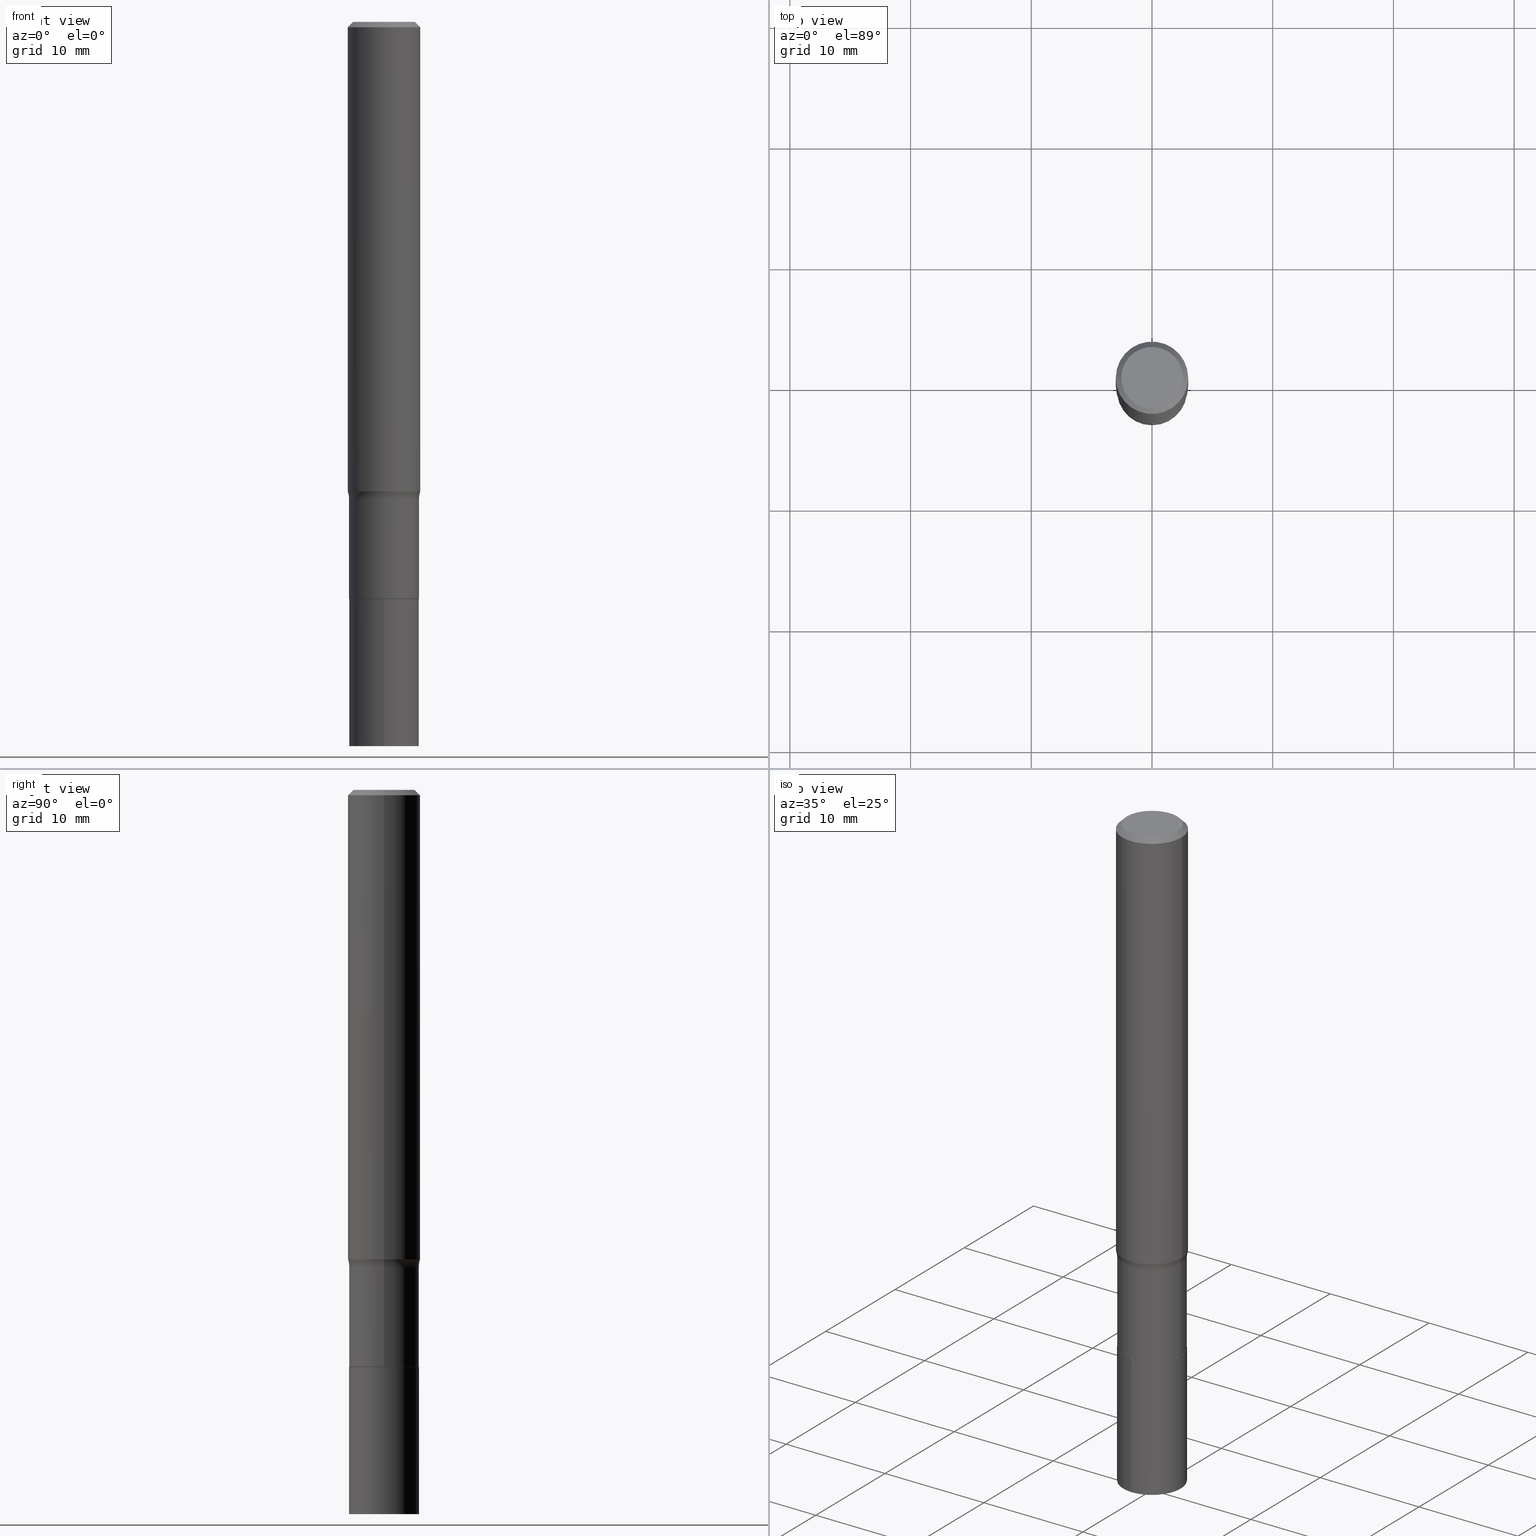
[diagram: canonical four-view strip — front | top / right | iso, engineering-drawing reading convention]
A machine part, canonical four-view strip (front | top / right | iso — engineering-drawing reading convention). The complete STEP part file that produces these views, byte-faithful:
ISO-10303-21;
HEADER;
FILE_DESCRIPTION (( 'STEP AP203' ),
    '1' );
FILE_NAME ('67103.STEP',
    '2024-04-19T15:53:03',
    ( '' ),
    ( '' ),
    'SwSTEP 2.0',
    'SolidWorks 2023',
    '' );
FILE_SCHEMA (( 'CONFIG_CONTROL_DESIGN' ));
ENDSEC;

DATA;
#1 = CARTESIAN_POINT ( 'NONE',  ( 3.744434943004037419E-29, -5.346060720523065079E-15, -1.531172646133749593 ) ) ;
#2 = DIRECTION ( 'NONE',  ( 2.438088387897960049E-29, -3.491481338843145188E-15, -1.000000000000000000 ) ) ;
#3 = CARTESIAN_POINT ( 'NONE',  ( 4.008699684532606202E-46, -5.723360734012321624E-32, -1.639235664913700718E-17 ) ) ;
#4 = CARTESIAN_POINT ( 'NONE',  ( 0.1181000000000001077, -8.246878922347488542E-16, 5.758764772215005345E-30 ) ) ;
#5 =( CONVERSION_BASED_UNIT ( 'INCH', #443 ) LENGTH_UNIT ( ) NAMED_UNIT ( #320 ) );
#6 = CARTESIAN_POINT ( 'NONE',  ( 0.000000000000000000, 0.000000000000000000, 0.000000000000000000 ) ) ;
#7 = VERTEX_POINT ( 'NONE', #51 ) ;
#8 = CARTESIAN_POINT ( 'NONE',  ( 8.110845328702120580E-16, 0.1141499999999934234, -1.882200000000000539 ) ) ;
#9 = VERTEX_POINT ( 'NONE', #187 ) ;
#10 = AXIS2_PLACEMENT_3D ( 'NONE', #155, #26, #305 ) ;
#11 = ORIENTED_EDGE ( 'NONE', *, *, #464, .T. ) ;
#12 = COORDINATED_UNIVERSAL_TIME_OFFSET ( 5, 0, .BEHIND. ) ;
#13 = EDGE_LOOP ( 'NONE', ( #153, #374, #444, #231 ) ) ;
#14 = ORIENTED_EDGE ( 'NONE', *, *, #382, .F. ) ;
#15 = DIRECTION ( 'NONE',  ( 1.000000000000000000, -6.982962677686269077E-15, 0.000000000000000000 ) ) ;
#16 = EDGE_LOOP ( 'NONE', ( #370, #253 ) ) ;
#17 = AXIS2_PLACEMENT_3D ( 'NONE', #392, #108, #65 ) ;
#18 = PRODUCT_DEFINITION_FORMATION_WITH_SPECIFIED_SOURCE ( 'ANY', '', #178, .NOT_KNOWN. ) ;
#19 = ADVANCED_FACE ( 'NONE', ( #339 ), #286, .T. ) ;
#20 = ADVANCED_FACE ( 'NONE', ( #290 ), #299, .T. ) ;
#21 = DIRECTION ( 'NONE',  ( -1.000000000000000000, 7.105427357601005014E-15, 0.000000000000000000 ) ) ;
#22 = PRODUCT_DEFINITION_SHAPE ( 'NONE', 'NONE',  #368 ) ;
#23 = CARTESIAN_POINT ( 'NONE',  ( -0.1141499999999999737, 8.110845328701541754E-16, -5.614964405525973971E-30 ) ) ;
#24 = ORIENTED_EDGE ( 'NONE', *, *, #431, .T. ) ;
#25 = CARTESIAN_POINT ( 'NONE',  ( 4.601638652598572305E-29, -6.569920435301148433E-15, -1.881700000000000372 ) ) ;
#26 = DIRECTION ( 'NONE',  ( -2.478387479907600418E-29, 3.444339924458025232E-15, 1.000000000000000000 ) ) ;
#27 = APPROVAL ( #283, 'UNSPECIFIED' ) ;
#28 = AXIS2_PLACEMENT_3D ( 'NONE', #273, #425, #99 ) ;
#29 = CARTESIAN_POINT ( 'NONE',  ( 3.805149462424072876E-29, -5.432744963239936043E-15, -1.556000000000000272 ) ) ;
#30 = CARTESIAN_POINT ( 'NONE',  ( 4.602861387001665106E-29, -6.571666175970569936E-15, -1.882200000000000317 ) ) ;
#31 = CIRCLE ( 'NONE', #332, 0.08000000000000000167 ) ;
#32 = DIRECTION ( 'NONE',  ( -6.982962677686264344E-15, -1.000000000000000000, 2.393208930060677491E-15 ) ) ;
#33 = AXIS2_PLACEMENT_3D ( 'NONE', #121, #268, #345 ) ;
#34 = CC_DESIGN_PERSON_AND_ORGANIZATION_ASSIGNMENT ( #437, #326, ( #18 ) ) ;
#35 = FACE_OUTER_BOUND ( 'NONE', #304, .T. ) ;
#36 = CARTESIAN_POINT ( 'NONE',  ( 0.1180999999999999966, -8.865394841523548556E-16, -0.01771500000000011954 ) ) ;
#37 = DIRECTION ( 'NONE',  ( 1.000000000000000000, -6.982962677686265922E-15, 4.876176775795935793E-29 ) ) ;
#38 = CARTESIAN_POINT ( 'NONE',  ( 3.805149462424072876E-29, -5.432744963239936043E-15, -1.556000000000000272 ) ) ;
#39 = CALENDAR_DATE ( 2024, 19, 4 ) ;
#40 = AXIS2_PLACEMENT_3D ( 'NONE', #189, #351, #342 ) ;
#41 = CARTESIAN_POINT ( 'NONE',  ( -0.1141499999999999598, -5.190248166400388062E-15, -1.556000000000000272 ) ) ;
#42 = PERSON_AND_ORGANIZATION_ROLE ( 'creator' ) ;
#43 = ADVANCED_FACE ( 'NONE', ( #383 ), #232, .F. ) ;
#44 = EDGE_LOOP ( 'NONE', ( #272, #92, #295, #199 ) ) ;
#45 = ORIENTED_EDGE ( 'NONE', *, *, #53, .T. ) ;
#46 = ORIENTED_EDGE ( 'NONE', *, *, #53, .F. ) ;
#47 = ORIENTED_EDGE ( 'NONE', *, *, #436, .F. ) ;
#48 =( NAMED_UNIT ( * ) SI_UNIT ( $, .STERADIAN. ) SOLID_ANGLE_UNIT ( ) );
#49 = VECTOR ( 'NONE', #366, 39.37007874015748143 ) ;
#50 = DATE_TIME_ROLE ( 'classification_date' ) ;
#51 = CARTESIAN_POINT ( 'NONE',  ( 0.1181000000000002048, -6.170748612757814919E-15, -1.531172646133749593 ) ) ;
#52 = EDGE_CURVE ( 'NONE', #376, #375, #31, .T. ) ;
#53 = EDGE_CURVE ( 'NONE', #7, #96, #456, .T. ) ;
#54 = CARTESIAN_POINT ( 'NONE',  ( -2.118583766411479793E-29, -1.955405348779394738E-14, -2.362200000000000522 ) ) ;
#55 = ORIENTED_EDGE ( 'NONE', *, *, #194, .T. ) ;
#56 = AXIS2_PLACEMENT_3D ( 'NONE', #379, #94, #198 ) ;
#57 = CARTESIAN_POINT ( 'NONE',  ( 8.017399369065212404E-46, -1.144672146802464325E-31, -3.278471329827401435E-17 ) ) ;
#58 = APPROVAL ( #292, 'UNSPECIFIED' ) ;
#59 = CARTESIAN_POINT ( 'NONE',  ( 3.805149462424072876E-29, -5.432744963239936043E-15, -1.556000000000000272 ) ) ;
#60 = EDGE_LOOP ( 'NONE', ( #267, #252, #176, #426 ) ) ;
#61 = AXIS2_PLACEMENT_3D ( 'NONE', #131, #278, #315 ) ;
#62 = DIRECTION ( 'NONE',  ( -6.982962677686265922E-15, -1.000000000000000000, 3.444339924458025232E-15 ) ) ;
#63 = DIRECTION ( 'NONE',  ( -2.478387479907600418E-29, 3.444339924458025232E-15, 1.000000000000000000 ) ) ;
#64 = CC_DESIGN_DATE_AND_TIME_ASSIGNMENT ( #328, #373, ( #368 ) ) ;
#65 = DIRECTION ( 'NONE',  ( 1.000000000000000000, -6.982962677686266711E-15, 4.876176775795935793E-29 ) ) ;
#66 = CLOSED_SHELL ( 'NONE', ( #19, #101, #402, #181, #352, #341, #214, #229, #427, #360, #314, #152 ) ) ;
#67 = DIRECTION ( 'NONE',  ( 0.7071067811866199593, -2.468850131083015945E-15, 0.7071067811864750752 ) ) ;
#68 = AXIS2_PLACEMENT_3D ( 'NONE', #271, #233, #452 ) ;
#69 = LOCAL_TIME ( 11, 53, 3.000000000000000000, #330 ) ;
#70 = DIRECTION ( 'NONE',  ( -2.445468806185136597E-29, 3.491481338843145583E-15, 1.000000000000000000 ) ) ;
#71 = CYLINDRICAL_SURFACE ( 'NONE', #17, 0.1141499999999999737 ) ;
#72 = DATE_AND_TIME ( #445, #306 ) ;
#73 = DIRECTION ( 'NONE',  ( 1.000000000000000000, -6.982962677686266711E-15, 4.876176775795935793E-29 ) ) ;
#74 = APPROVAL_DATE_TIME ( #293, #27 ) ;
#75 = AXIS2_PLACEMENT_3D ( 'NONE', #210, #63, #169 ) ;
#76 = CARTESIAN_POINT ( 'NONE',  ( 4.602861387001665106E-29, -6.571666175970569936E-15, -1.882200000000000317 ) ) ;
#77 = PERSON_AND_ORGANIZATION ( #300, #90 ) ;
#78 = CARTESIAN_POINT ( 'NONE',  ( -0.1136500000000000010, -5.764134356779215870E-15, -1.882200000000000317 ) ) ;
#79 = VERTEX_POINT ( 'NONE', #417 ) ;
#80 = EDGE_CURVE ( 'NONE', #438, #375, #85, .T. ) ;
#81 = EDGE_LOOP ( 'NONE', ( #205, #191, #86, #46 ) ) ;
#82 = DATE_AND_TIME ( #39, #467 ) ;
#83 = EDGE_LOOP ( 'NONE', ( #122, #447 ) ) ;
#84 = LINE ( 'NONE', #420, #317 ) ;
#85 = LINE ( 'NONE', #23, #274 ) ;
#86 = ORIENTED_EDGE ( 'NONE', *, *, #382, .T. ) ;
#87 = FACE_OUTER_BOUND ( 'NONE', #338, .T. ) ;
#88 = ORIENTED_EDGE ( 'NONE', *, *, #80, .F. ) ;
#89 = CIRCLE ( 'NONE', #222, 0.1141499999999999598 ) ;
#90 = ORGANIZATION ( 'UNSPECIFIED', 'UNSPECIFIED', '' ) ;
#91 = DIRECTION ( 'NONE',  ( -2.445468806185136877E-29, 3.491481338843145188E-15, 1.000000000000000000 ) ) ;
#92 = ORIENTED_EDGE ( 'NONE', *, *, #398, .T. ) ;
#93 = EDGE_CURVE ( 'NONE', #96, #375, #106, .T. ) ;
#94 = DIRECTION ( 'NONE',  ( 2.445468806185136597E-29, -3.491481338843145583E-15, -1.000000000000000000 ) ) ;
#95 = DIRECTION ( 'NONE',  ( 1.000000000000000000, -6.982962677686266711E-15, 4.883557194083112901E-29 ) ) ;
#96 = VERTEX_POINT ( 'NONE', #265 ) ;
#97 = AXIS2_PLACEMENT_3D ( 'NONE', #167, #207, #73 ) ;
#98 = LOCAL_TIME ( 11, 53, 3.000000000000000000, #170 ) ;
#99 = DIRECTION ( 'NONE',  ( 1.000000000000000000, -6.982962677686266711E-15, 4.875668750515089058E-29 ) ) ;
#100 = CC_DESIGN_PERSON_AND_ORGANIZATION_ASSIGNMENT ( #440, #284, ( #18 ) ) ;
#101 = ADVANCED_FACE ( 'NONE', ( #418 ), #340, .T. ) ;
#102 = DIRECTION ( 'NONE',  ( -2.445468806185136597E-29, 3.491481338843145583E-15, 1.000000000000000000 ) ) ;
#103 = CARTESIAN_POINT ( 'NONE',  ( 0.1136500000000000010, -7.365279884289614646E-15, -1.882200000000000317 ) ) ;
#104 = DIRECTION ( 'NONE',  ( -2.445468806185136597E-29, 3.491481338843145583E-15, 1.000000000000000000 ) ) ;
#105 = DIRECTION ( 'NONE',  ( 1.000000000000000000, -6.982962677686268288E-15, 0.000000000000000000 ) ) ;
#106 = CIRCLE ( 'NONE', #159, 0.1141499999999999598 ) ;
#107 = CC_DESIGN_APPROVAL ( #227, ( #124 ) ) ;
#108 = DIRECTION ( 'NONE',  ( -2.445468806185136597E-29, 3.491481338843145583E-15, 1.000000000000000000 ) ) ;
#109 = DIRECTION ( 'NONE',  ( 1.000000000000000000, -6.982962677686266711E-15, 0.000000000000000000 ) ) ;
#110 = COORDINATED_UNIVERSAL_TIME_OFFSET ( 5, 0, .BEHIND. ) ;
#111 = VECTOR ( 'NONE', #454, 39.37007874015748143 ) ;
#112 = ORIENTED_EDGE ( 'NONE', *, *, #270, .T. ) ;
#113 = MECHANICAL_CONTEXT ( 'NONE', #276, 'mechanical' ) ;
#114 = PERSON_AND_ORGANIZATION_ROLE ( 'classification_officer' ) ;
#115 = CC_DESIGN_PERSON_AND_ORGANIZATION_ASSIGNMENT ( #221, #335, ( #178 ) ) ;
#116 = ORIENTED_EDGE ( 'NONE', *, *, #436, .T. ) ;
#117 = CIRCLE ( 'NONE', #296, 0.1180999999999999966 ) ;
#118 = CIRCLE ( 'NONE', #258, 0.1141500000000000015 ) ;
#119 = ORIENTED_EDGE ( 'NONE', *, *, #389, .F. ) ;
#120 = DIRECTION ( 'NONE',  ( -2.478387479907600418E-29, 3.444339924458025232E-15, 1.000000000000000000 ) ) ;
#121 = CARTESIAN_POINT ( 'NONE',  ( 0.1941499999999999615, -6.788487167112723835E-15, -1.556000000000000272 ) ) ;
#122 = ORIENTED_EDGE ( 'NONE', *, *, #442, .T. ) ;
#123 = AXIS2_PLACEMENT_3D ( 'NONE', #57, #158, #303 ) ;
#124 = SECURITY_CLASSIFICATION ( '', '', #399 ) ;
#125 = CARTESIAN_POINT ( 'NONE',  ( -0.1180999999999999966, 7.628363003171412752E-16, -0.01771500000000011954 ) ) ;
#126 = VERTEX_POINT ( 'NONE', #347 ) ;
#127 = CARTESIAN_POINT ( 'NONE',  ( -0.1941499999999999615, -4.053226241761702003E-15, -1.556000000000000272 ) ) ;
#128 = VERTEX_POINT ( 'NONE', #260 ) ;
#129 = CARTESIAN_POINT ( 'NONE',  ( -7.971051896578411746E-16, -0.1141500000000065657, -1.882199999999999873 ) ) ;
#130 = AXIS2_PLACEMENT_3D ( 'NONE', #29, #462, #95 ) ;
#131 = CARTESIAN_POINT ( 'NONE',  ( 4.602861387001665106E-29, -6.571666175970569936E-15, -1.882200000000000317 ) ) ;
#132 = DIRECTION ( 'NONE',  ( -6.982962677686265922E-15, -1.000000000000000000, 2.393208930060677886E-15 ) ) ;
#133 =( LENGTH_UNIT ( ) NAMED_UNIT ( * ) SI_UNIT ( $, .METRE. ) );
#134 = CARTESIAN_POINT ( 'NONE',  ( -0.1181000000000002048, -4.506909749590386093E-15, -1.531172646133749593 ) ) ;
#135 = CARTESIAN_POINT ( 'NONE',  ( 4.602861387001665106E-29, -6.571666175970569936E-15, -1.882200000000000317 ) ) ;
#136 = AXIS2_PLACEMENT_3D ( 'NONE', #310, #120, #161 ) ;
#137 = CARTESIAN_POINT ( 'NONE',  ( 5.792487377357314585E-29, -8.224949339710423941E-15, -2.362200000000000966 ) ) ;
#138 = APPLICATION_PROTOCOL_DEFINITION ( 'international standard', 'config_control_design', 1994, #276 ) ;
#139 = APPROVAL_ROLE ( '' ) ;
#140 = DIRECTION ( 'NONE',  ( -2.445468806185136597E-29, 3.491481338843145583E-15, 1.000000000000000000 ) ) ;
#141 = PRODUCT_RELATED_PRODUCT_CATEGORY ( 'detail', '', ( #178 ) ) ;
#142 = PERSON_AND_ORGANIZATION ( #300, #90 ) ;
#143 = VECTOR ( 'NONE', #262, 39.37007874015748143 ) ;
#144 = CARTESIAN_POINT ( 'NONE',  ( 4.332147990156998495E-31, -6.185159191760674092E-17, -0.01771500000000011954 ) ) ;
#145 = ORIENTED_EDGE ( 'NONE', *, *, #238, .T. ) ;
#146 = ORIENTED_EDGE ( 'NONE', *, *, #93, .F. ) ;
#147 = PERSON_AND_ORGANIZATION ( #300, #90 ) ;
#148 = CC_DESIGN_PERSON_AND_ORGANIZATION_ASSIGNMENT ( #365, #42, ( #368 ) ) ;
#149 =( NAMED_UNIT ( * ) PLANE_ANGLE_UNIT ( ) SI_UNIT ( $, .RADIAN. ) );
#150 = ORIENTED_EDGE ( 'NONE', *, *, #391, .F. ) ;
#151 = VERTEX_POINT ( 'NONE', #204 ) ;
#152 = ADVANCED_FACE ( 'NONE', ( #378 ), #356, .T. ) ;
#153 = ORIENTED_EDGE ( 'NONE', *, *, #327, .T. ) ;
#154 = FACE_OUTER_BOUND ( 'NONE', #422, .T. ) ;
#155 = CARTESIAN_POINT ( 'NONE',  ( 4.602861387001665106E-29, -6.571666175970569936E-15, -1.882200000000000317 ) ) ;
#156 = EDGE_LOOP ( 'NONE', ( #311, #11, #307, #466 ) ) ;
#157 = EDGE_CURVE ( 'NONE', #419, #388, #348, .T. ) ;
#158 = DIRECTION ( 'NONE',  ( -2.445468806185136597E-29, 3.491481338843145583E-15, 1.000000000000000000 ) ) ;
#159 = AXIS2_PLACEMENT_3D ( 'NONE', #59, #201, #387 ) ;
#160 = CARTESIAN_POINT ( 'NONE',  ( 0.1141499999999999737, -7.971051896578871257E-16, 5.566155789571059486E-30 ) ) ;
#161 = DIRECTION ( 'NONE',  ( -6.982962677686264344E-15, -1.000000000000000000, 2.393208930060677491E-15 ) ) ;
#162 = CARTESIAN_POINT ( 'NONE',  ( 0.1180999999999999966, -8.720764054544246253E-16, -0.01771500000000011954 ) ) ;
#163 = EDGE_LOOP ( 'NONE', ( #119, #448, #145, #255 ) ) ;
#164 = FACE_OUTER_BOUND ( 'NONE', #372, .T. ) ;
#165 = AXIS2_PLACEMENT_3D ( 'NONE', #337, #294, #15 ) ;
#166 = VECTOR ( 'NONE', #433, 39.37007874015748143 ) ;
#167 = CARTESIAN_POINT ( 'NONE',  ( 0.000000000000000000, 0.000000000000000000, 0.000000000000000000 ) ) ;
#168 = CARTESIAN_POINT ( 'NONE',  ( 3.744434943004037419E-29, -5.346060720523065079E-15, -1.531172646133749593 ) ) ;
#169 = DIRECTION ( 'NONE',  ( -6.982962677686265922E-15, -1.000000000000000000, 2.393208930060677886E-15 ) ) ;
#170 = COORDINATED_UNIVERSAL_TIME_OFFSET ( 5, 0, .BEHIND. ) ;
#171 = AXIS2_PLACEMENT_3D ( 'NONE', #6, #140, #285 ) ;
#172 = AXIS2_PLACEMENT_3D ( 'NONE', #144, #441, #344 ) ;
#173 = CALENDAR_DATE ( 2024, 19, 4 ) ;
#174 = EDGE_CURVE ( 'NONE', #410, #196, #287, .T. ) ;
#175 = DIRECTION ( 'NONE',  ( -2.478387479907600418E-29, 3.444339924458025232E-15, 1.000000000000000000 ) ) ;
#176 = ORIENTED_EDGE ( 'NONE', *, *, #442, .F. ) ;
#177 = CARTESIAN_POINT ( 'NONE',  ( -0.1003849999999999465, 7.319105043583382745E-16, -3.278471329827902485E-17 ) ) ;
#178 = PRODUCT ( '67103', '67103', '', ( #113 ) ) ;
#179 = AXIS2_PLACEMENT_3D ( 'NONE', #397, #211, #359 ) ;
#180 = AXIS2_PLACEMENT_3D ( 'NONE', #135, #209, #321 ) ;
#181 = ADVANCED_FACE ( 'NONE', ( #459 ), #423, .F. ) ;
#182 = APPROVAL_STATUS ( 'not_yet_approved' ) ;
#183 = FACE_OUTER_BOUND ( 'NONE', #13, .T. ) ;
#184 = MANIFOLD_SOLID_BREP ( 'Body-Move/Copy2[1]', #408 ) ;
#185 = ADVANCED_FACE ( 'NONE', ( #154 ), #302, .T. ) ;
#186 = DESIGN_CONTEXT ( 'detailed design', #301, 'design' ) ;
#187 = CARTESIAN_POINT ( 'NONE',  ( -7.971051896578291444E-16, -0.1141500000000082032, -2.362200000000000522 ) ) ;
#188 = CIRCLE ( 'NONE', #363, 0.1141499999999999737 ) ;
#189 = CARTESIAN_POINT ( 'NONE',  ( 3.805149462424072876E-29, -5.432744963239936043E-15, -1.556000000000000272 ) ) ;
#190 = LOCAL_TIME ( 11, 53, 3.000000000000000000, #110 ) ;
#191 = ORIENTED_EDGE ( 'NONE', *, *, #52, .T. ) ;
#192 = MANIFOLD_SOLID_BREP ( 'Body-Move/Copy2[2]', #66 ) ;
#193 = UNCERTAINTY_MEASURE_WITH_UNIT (LENGTH_MEASURE( 1.000000000000000082E-05 ), #5, 'distance_accuracy_value', 'NONE');
#194 = EDGE_CURVE ( 'NONE', #410, #331, #421, .T. ) ;
#195 = DIRECTION ( 'NONE',  ( 7.105427357601001859E-15, 1.000000000000000000, -3.491481338843145583E-15 ) ) ;
#196 = VERTEX_POINT ( 'NONE', #413 ) ;
#197 = LINE ( 'NONE', #160, #325 ) ;
#198 = DIRECTION ( 'NONE',  ( -1.000000000000000000, 6.982962677686266711E-15, 0.000000000000000000 ) ) ;
#199 = ORIENTED_EDGE ( 'NONE', *, *, #461, .F. ) ;
#200 = DIRECTION ( 'NONE',  ( -2.445468806185136877E-29, 3.491481338843145188E-15, 1.000000000000000000 ) ) ;
#201 = DIRECTION ( 'NONE',  ( -2.445468806185136597E-29, 3.491481338843145583E-15, 1.000000000000000000 ) ) ;
#202 = AXIS2_PLACEMENT_3D ( 'NONE', #168, #70, #206 ) ;
#203 = EDGE_CURVE ( 'NONE', #196, #460, #385, .T. ) ;
#204 = CARTESIAN_POINT ( 'NONE',  ( 0.1136500000000000010, -7.365279884289614646E-15, -1.882200000000000317 ) ) ;
#205 = ORIENTED_EDGE ( 'NONE', *, *, #446, .F. ) ;
#206 = DIRECTION ( 'NONE',  ( 1.000000000000000000, -6.982962677686268288E-15, 0.000000000000000000 ) ) ;
#207 = DIRECTION ( 'NONE',  ( -2.445468806185136597E-29, 3.491481338843145583E-15, 1.000000000000000000 ) ) ;
#208 = AXIS2_PLACEMENT_3D ( 'NONE', #54, #225, #62 ) ;
#209 = DIRECTION ( 'NONE',  ( -2.445468806185136597E-29, 3.491481338843145583E-15, 1.000000000000000000 ) ) ;
#210 = CARTESIAN_POINT ( 'NONE',  ( 5.792487377357314585E-29, -8.224949339710423941E-15, -2.362200000000000966 ) ) ;
#211 = DIRECTION ( 'NONE',  ( 2.478387479907600137E-29, -3.444339924458025232E-15, -1.000000000000000000 ) ) ;
#212 = COORDINATED_UNIVERSAL_TIME_OFFSET ( 5, 0, .BEHIND. ) ;
#213 = DIRECTION ( 'NONE',  ( -1.000000000000000000, 6.982962677686265922E-15, -4.876176775795935793E-29 ) ) ;
#214 = ADVANCED_FACE ( 'NONE', ( #87 ), #449, .F. ) ;
#215 = CIRCLE ( 'NONE', #243, 0.1141500000000000015 ) ;
#216 = CIRCLE ( 'NONE', #297, 0.1181000000000002048 ) ;
#217 = CARTESIAN_POINT ( 'NONE',  ( 8.110845328702002251E-16, 0.1141499999999934234, -1.882200000000000539 ) ) ;
#218 = EDGE_LOOP ( 'NONE', ( #412, #455 ) ) ;
#219 = DIRECTION ( 'NONE',  ( 1.000000000000000000, 0.000000000000000000, 0.000000000000000000 ) ) ;
#220 = EDGE_LOOP ( 'NONE', ( #88, #24, #116, #14 ) ) ;
#221 = PERSON_AND_ORGANIZATION ( #300, #90 ) ;
#222 = AXIS2_PLACEMENT_3D ( 'NONE', #38, #312, #465 ) ;
#223 = ORIENTED_EDGE ( 'NONE', *, *, #353, .F. ) ;
#224 = CARTESIAN_POINT ( 'NONE',  ( -0.1141500000000000015, -5.190248166400388062E-15, -1.881700000000000372 ) ) ;
#225 = DIRECTION ( 'NONE',  ( -2.478387479907600137E-29, 3.444339924458025232E-15, 1.000000000000000000 ) ) ;
#226 = ORIENTED_EDGE ( 'NONE', *, *, #174, .T. ) ;
#227 = APPROVAL ( #182, 'UNSPECIFIED' ) ;
#228 = APPROVAL_DATE_TIME ( #72, #227 ) ;
#229 = ADVANCED_FACE ( 'NONE', ( #349 ), #235, .T. ) ;
#230 = DIRECTION ( 'NONE',  ( -6.982962677686264344E-15, -1.000000000000000000, 2.393208930060677491E-15 ) ) ;
#231 = ORIENTED_EDGE ( 'NONE', *, *, #298, .F. ) ;
#232 = PLANE ( 'NONE',  #208 ) ;
#233 = DIRECTION ( 'NONE',  ( -2.445468806185136597E-29, 3.491481338843145583E-15, 1.000000000000000000 ) ) ;
#234 = ORIENTED_EDGE ( 'NONE', *, *, #446, .T. ) ;
#235 = CYLINDRICAL_SURFACE ( 'NONE', #416, 0.1181000000000001077 ) ;
#236 = ADVANCED_BREP_SHAPE_REPRESENTATION ( '67103', ( #184, #192, #396 ), #266 ) ;
#237 = CONICAL_SURFACE ( 'NONE', #172, 0.1180999999999999966, 0.7853981633974473908 ) ;
#238 = EDGE_CURVE ( 'NONE', #460, #331, #324, .T. ) ;
#239 = LINE ( 'NONE', #217, #49 ) ;
#240 = DIRECTION ( 'NONE',  ( -2.438088387897960049E-29, 3.491481338843145188E-15, 1.000000000000000000 ) ) ;
#241 = EDGE_CURVE ( 'NONE', #151, #126, #249, .T. ) ;
#242 = LINE ( 'NONE', #394, #166 ) ;
#243 = AXIS2_PLACEMENT_3D ( 'NONE', #390, #104, #279 ) ;
#244 = LINE ( 'NONE', #103, #424 ) ;
#245 = PLANE ( 'NONE',  #179 ) ;
#246 = CALENDAR_DATE ( 2024, 19, 4 ) ;
#247 = LINE ( 'NONE', #4, #316 ) ;
#248 = EDGE_CURVE ( 'NONE', #9, #128, #264, .T. ) ;
#249 = CIRCLE ( 'NONE', #61, 0.1136500000000000010 ) ;
#250 = PERSON_AND_ORGANIZATION ( #300, #90 ) ;
#251 = AXIS2_PLACEMENT_3D ( 'NONE', #25, #453, #263 ) ;
#252 = ORIENTED_EDGE ( 'NONE', *, *, #391, .T. ) ;
#253 = ORIENTED_EDGE ( 'NONE', *, *, #270, .F. ) ;
#254 = DIRECTION ( 'NONE',  ( 0.000000000000000000, 0.000000000000000000, 1.000000000000000000 ) ) ;
#255 = ORIENTED_EDGE ( 'NONE', *, *, #194, .F. ) ;
#256 = CALENDAR_DATE ( 2024, 19, 4 ) ;
#257 = ORIENTED_EDGE ( 'NONE', *, *, #157, .F. ) ;
#258 = AXIS2_PLACEMENT_3D ( 'NONE', #393, #318, #32 ) ;
#259 = EDGE_LOOP ( 'NONE', ( #380, #384, #55, #407 ) ) ;
#260 = CARTESIAN_POINT ( 'NONE',  ( 8.110845328702060430E-16, 0.1141499999999917442, -2.362200000000000966 ) ) ;
#261 = CC_DESIGN_DATE_AND_TIME_ASSIGNMENT ( #406, #50, ( #124 ) ) ;
#262 = DIRECTION ( 'NONE',  ( -0.7071067811865469066, 2.468850131082249961E-15, -0.7071067811865482389 ) ) ;
#263 = DIRECTION ( 'NONE',  ( 1.000000000000000000, -6.982962677686264344E-15, 0.000000000000000000 ) ) ;
#264 = CIRCLE ( 'NONE', #75, 0.1141499999999999737 ) ;
#265 = CARTESIAN_POINT ( 'NONE',  ( 0.1141499999999999598, -6.229850152897822971E-15, -1.556000000000000272 ) ) ;
#266 =( GEOMETRIC_REPRESENTATION_CONTEXT ( 3 ) GLOBAL_UNCERTAINTY_ASSIGNED_CONTEXT ( ( #193 ) ) GLOBAL_UNIT_ASSIGNED_CONTEXT ( ( #5, #149, #48 ) ) REPRESENTATION_CONTEXT ( 'NONE', 'WORKASPACE' ) );
#267 = ORIENTED_EDGE ( 'NONE', *, *, #248, .T. ) ;
#268 = DIRECTION ( 'NONE',  ( -6.982962677686266711E-15, -1.000000000000000000, 3.491481338843145583E-15 ) ) ;
#269 = ORIENTED_EDGE ( 'NONE', *, *, #80, .T. ) ;
#270 = EDGE_CURVE ( 'NONE', #128, #9, #188, .T. ) ;
#271 = CARTESIAN_POINT ( 'NONE',  ( 4.602861387001665106E-29, -6.571666175970569936E-15, -1.882200000000000317 ) ) ;
#272 = ORIENTED_EDGE ( 'NONE', *, *, #241, .T. ) ;
#273 = CARTESIAN_POINT ( 'NONE',  ( 8.017399369065212404E-46, -1.144672146802464325E-31, -3.278471329827401435E-17 ) ) ;
#274 = VECTOR ( 'NONE', #91, 39.37007874015748143 ) ;
#275 = ORIENTED_EDGE ( 'NONE', *, *, #52, .F. ) ;
#276 = APPLICATION_CONTEXT ( 'configuration controlled 3d designs of mechanical parts and assemblies' ) ;
#277 = FACE_OUTER_BOUND ( 'NONE', #220, .T. ) ;
#278 = DIRECTION ( 'NONE',  ( -2.445468806185136597E-29, 3.491481338843145583E-15, 1.000000000000000000 ) ) ;
#279 = DIRECTION ( 'NONE',  ( 1.000000000000000000, -6.982962677686264344E-15, 0.000000000000000000 ) ) ;
#280 = VECTOR ( 'NONE', #369, 39.37007874015748143 ) ;
#281 = CIRCLE ( 'NONE', #180, 0.1136500000000000010 ) ;
#282 = DIRECTION ( 'NONE',  ( -2.445468806185136597E-29, 3.491481338843145583E-15, 1.000000000000000000 ) ) ;
#283 = APPROVAL_STATUS ( 'not_yet_approved' ) ;
#284 = PERSON_AND_ORGANIZATION_ROLE ( 'creator' ) ;
#285 = DIRECTION ( 'NONE',  ( 1.000000000000000000, -6.982962677686266711E-15, 4.876176775795935793E-29 ) ) ;
#286 = CONICAL_SURFACE ( 'NONE', #165, 0.1136500000000000010, 0.7853981633975507526 ) ;
#287 = CIRCLE ( 'NONE', #123, 0.1003849999999999465 ) ;
#288 = CC_DESIGN_APPROVAL ( #27, ( #368 ) ) ;
#289 = FACE_OUTER_BOUND ( 'NONE', #259, .T. ) ;
#290 = FACE_OUTER_BOUND ( 'NONE', #60, .T. ) ;
#291 = EDGE_CURVE ( 'NONE', #79, #438, #215, .T. ) ;
#292 = APPROVAL_STATUS ( 'not_yet_approved' ) ;
#293 = DATE_AND_TIME ( #246, #98 ) ;
#294 = DIRECTION ( 'NONE',  ( -2.445468806185136597E-29, 3.491481338843145583E-15, 1.000000000000000000 ) ) ;
#295 = ORIENTED_EDGE ( 'NONE', *, *, #291, .F. ) ;
#296 = AXIS2_PLACEMENT_3D ( 'NONE', #355, #282, #322 ) ;
#297 = AXIS2_PLACEMENT_3D ( 'NONE', #1, #429, #105 ) ;
#298 = EDGE_CURVE ( 'NONE', #7, #460, #247, .T. ) ;
#299 = CYLINDRICAL_SURFACE ( 'NONE', #415, 0.1141500000000000015 ) ;
#300 = PERSON ( 'UNSPECIFIED', 'UNSPECIFIED', 'UNSPECIFIED', ('UNSPECIFIED'), ('UNSPECIFIED'), ('UNSPECIFIED') ) ;
#301 = APPLICATION_CONTEXT ( 'configuration controlled 3d designs of mechanical parts and assemblies' ) ;
#302 = CYLINDRICAL_SURFACE ( 'NONE', #136, 0.1141500000000000015 ) ;
#303 = DIRECTION ( 'NONE',  ( 1.000000000000000000, -6.982962677686266711E-15, 4.875668750515089058E-29 ) ) ;
#304 = EDGE_LOOP ( 'NONE', ( #226, #313 ) ) ;
#305 = DIRECTION ( 'NONE',  ( -6.982962677686264344E-15, -1.000000000000000000, 2.393208930060677491E-15 ) ) ;
#306 = LOCAL_TIME ( 11, 53, 3.000000000000000000, #12 ) ;
#307 = ORIENTED_EDGE ( 'NONE', *, *, #461, .T. ) ;
#308 = EDGE_CURVE ( 'NONE', #9, #388, #242, .T. ) ;
#309 = DIRECTION ( 'NONE',  ( -2.445468806185136877E-29, 3.491481338843145188E-15, 1.000000000000000000 ) ) ;
#310 = CARTESIAN_POINT ( 'NONE',  ( 4.602861387001665106E-29, -6.571666175970569936E-15, -1.882200000000000317 ) ) ;
#311 = ORIENTED_EDGE ( 'NONE', *, *, #398, .F. ) ;
#312 = DIRECTION ( 'NONE',  ( -2.445468806185136597E-29, 3.491481338843145583E-15, 1.000000000000000000 ) ) ;
#313 = ORIENTED_EDGE ( 'NONE', *, *, #389, .T. ) ;
#314 = ADVANCED_FACE ( 'NONE', ( #358 ), #354, .F. ) ;
#315 = DIRECTION ( 'NONE',  ( 1.000000000000000000, -6.982962677686269077E-15, 0.000000000000000000 ) ) ;
#316 = VECTOR ( 'NONE', #400, 39.37007874015748143 ) ;
#317 = VECTOR ( 'NONE', #200, 39.37007874015748143 ) ;
#318 = DIRECTION ( 'NONE',  ( -2.478387479907600418E-29, 3.444339924458025232E-15, 1.000000000000000000 ) ) ;
#319 = PLANE ( 'NONE',  #395 ) ;
#320 = DIMENSIONAL_EXPONENTS ( 1.000000000000000000, 0.000000000000000000, 0.000000000000000000, 0.000000000000000000, 0.000000000000000000, 0.000000000000000000, 0.000000000000000000 ) ;
#321 = DIRECTION ( 'NONE',  ( 1.000000000000000000, -6.982962677686269077E-15, 0.000000000000000000 ) ) ;
#322 = DIRECTION ( 'NONE',  ( 1.000000000000000000, -6.982962677686266711E-15, 0.000000000000000000 ) ) ;
#323 = DIRECTION ( 'NONE',  ( 1.000000000000000000, -6.982962677686266711E-15, 4.876176775795935793E-29 ) ) ;
#324 = CIRCLE ( 'NONE', #409, 0.1180999999999999966 ) ;
#325 = VECTOR ( 'NONE', #309, 39.37007874015748143 ) ;
#326 = PERSON_AND_ORGANIZATION_ROLE ( 'design_supplier' ) ;
#327 = EDGE_CURVE ( 'NONE', #7, #376, #439, .T. ) ;
#328 = DATE_AND_TIME ( #173, #69 ) ;
#329 = LINE ( 'NONE', #78, #280 ) ;
#330 = COORDINATED_UNIVERSAL_TIME_OFFSET ( 5, 0, .BEHIND. ) ;
#331 = VERTEX_POINT ( 'NONE', #362 ) ;
#332 = AXIS2_PLACEMENT_3D ( 'NONE', #127, #195, #21 ) ;
#333 = AXIS2_PLACEMENT_3D ( 'NONE', #30, #240, #37 ) ;
#334 = CC_DESIGN_APPROVAL ( #58, ( #18 ) ) ;
#335 = PERSON_AND_ORGANIZATION_ROLE ( 'design_owner' ) ;
#336 = CYLINDRICAL_SURFACE ( 'NONE', #171, 0.1181000000000001077 ) ;
#337 = CARTESIAN_POINT ( 'NONE',  ( 4.602861387001665106E-29, -6.571666175970569936E-15, -1.882200000000000317 ) ) ;
#338 = EDGE_LOOP ( 'NONE', ( #275, #405, #45, #401 ) ) ;
#339 = FACE_OUTER_BOUND ( 'NONE', #44, .T. ) ;
#340 = CONICAL_SURFACE ( 'NONE', #56, 0.1180999999999999966, 0.7853981633974473908 ) ;
#341 = ADVANCED_FACE ( 'NONE', ( #277 ), #71, .T. ) ;
#342 = DIRECTION ( 'NONE',  ( 1.000000000000000000, -6.982962677686266711E-15, 4.883557194083112901E-29 ) ) ;
#343 = ORIENTED_EDGE ( 'NONE', *, *, #298, .T. ) ;
#344 = DIRECTION ( 'NONE',  ( -1.000000000000000000, 6.982962677686266711E-15, 0.000000000000000000 ) ) ;
#345 = DIRECTION ( 'NONE',  ( 1.000000000000000000, -6.982962677686259611E-15, 0.000000000000000000 ) ) ;
#346 = ORIENTED_EDGE ( 'NONE', *, *, #291, .T. ) ;
#347 = CARTESIAN_POINT ( 'NONE',  ( -0.1136500000000000010, -5.761485129605104669E-15, -1.882200000000000317 ) ) ;
#348 = CIRCLE ( 'NONE', #10, 0.1141500000000000015 ) ;
#349 = FACE_OUTER_BOUND ( 'NONE', #403, .T. ) ;
#350 = ORIENTED_EDGE ( 'NONE', *, *, #435, .F. ) ;
#351 = DIRECTION ( 'NONE',  ( -2.445468806185136597E-29, 3.491481338843145583E-15, 1.000000000000000000 ) ) ;
#352 = ADVANCED_FACE ( 'NONE', ( #164 ), #468, .T. ) ;
#353 = EDGE_CURVE ( 'NONE', #331, #460, #117, .T. ) ;
#354 = PLANE ( 'NONE',  #333 ) ;
#355 = CARTESIAN_POINT ( 'NONE',  ( 4.332147990156998495E-31, -6.185159191760674092E-17, -0.01771500000000011954 ) ) ;
#356 = CONICAL_SURFACE ( 'NONE', #68, 0.1136500000000000010, 0.7853981633975507526 ) ;
#357 = CC_DESIGN_SECURITY_CLASSIFICATION ( #124, ( #18 ) ) ;
#358 = FACE_OUTER_BOUND ( 'NONE', #218, .T. ) ;
#359 = DIRECTION ( 'NONE',  ( 6.982962677686265922E-15, 1.000000000000000000, -3.444339924458025232E-15 ) ) ;
#360 = ADVANCED_FACE ( 'NONE', ( #35 ), #319, .F. ) ;
#361 = CARTESIAN_POINT ( 'NONE',  ( 0.000000000000000000, 0.000000000000000000, 0.000000000000000000 ) ) ;
#362 = CARTESIAN_POINT ( 'NONE',  ( -0.1180999999999999966, -1.864805185287656258E-15, -0.01771500000000011954 ) ) ;
#363 = AXIS2_PLACEMENT_3D ( 'NONE', #137, #430, #132 ) ;
#364 = APPROVAL_PERSON_ORGANIZATION ( #250, #227, #434 ) ;
#365 = PERSON_AND_ORGANIZATION ( #300, #90 ) ;
#366 = DIRECTION ( 'NONE',  ( -2.478387479907600418E-29, 3.444339924458025232E-15, 1.000000000000000000 ) ) ;
#367 = APPROVAL_ROLE ( '' ) ;
#368 = PRODUCT_DEFINITION ( 'UNKNOWN', '', #18, #186 ) ;
#369 = DIRECTION ( 'NONE',  ( -0.7071067811866199593, 7.493145998870616062E-15, 0.7071067811864750752 ) ) ;
#370 = ORIENTED_EDGE ( 'NONE', *, *, #248, .F. ) ;
#371 = APPLICATION_PROTOCOL_DEFINITION ( 'international standard', 'config_control_design', 1994, #301 ) ;
#372 = EDGE_LOOP ( 'NONE', ( #346, #269, #146, #47 ) ) ;
#373 = DATE_TIME_ROLE ( 'creation_date' ) ;
#374 = ORIENTED_EDGE ( 'NONE', *, *, #435, .T. ) ;
#375 = VERTEX_POINT ( 'NONE', #41 ) ;
#376 = VERTEX_POINT ( 'NONE', #134 ) ;
#377 = ADVANCED_FACE ( 'NONE', ( #432 ), #245, .F. ) ;
#378 = FACE_OUTER_BOUND ( 'NONE', #156, .T. ) ;
#379 = CARTESIAN_POINT ( 'NONE',  ( 4.332147990156998495E-31, -6.185159191760674092E-17, -0.01771500000000011954 ) ) ;
#380 = ORIENTED_EDGE ( 'NONE', *, *, #203, .F. ) ;
#381 = SHAPE_DEFINITION_REPRESENTATION ( #22, #236 ) ;
#382 = EDGE_CURVE ( 'NONE', #375, #96, #89, .T. ) ;
#383 = FACE_OUTER_BOUND ( 'NONE', #16, .T. ) ;
#384 = ORIENTED_EDGE ( 'NONE', *, *, #174, .F. ) ;
#385 = LINE ( 'NONE', #162, #111 ) ;
#386 = CIRCLE ( 'NONE', #251, 0.1141500000000000015 ) ;
#387 = DIRECTION ( 'NONE',  ( 1.000000000000000000, -6.982962677686267499E-15, 0.000000000000000000 ) ) ;
#388 = VERTEX_POINT ( 'NONE', #129 ) ;
#389 = EDGE_CURVE ( 'NONE', #196, #410, #457, .T. ) ;
#390 = CARTESIAN_POINT ( 'NONE',  ( 4.601638652598572305E-29, -6.569920435301148433E-15, -1.881700000000000372 ) ) ;
#391 = EDGE_CURVE ( 'NONE', #128, #419, #239, .T. ) ;
#392 = CARTESIAN_POINT ( 'NONE',  ( 0.000000000000000000, 0.000000000000000000, 0.000000000000000000 ) ) ;
#393 = CARTESIAN_POINT ( 'NONE',  ( 4.602861387001665106E-29, -6.571666175970569936E-15, -1.882200000000000317 ) ) ;
#394 = CARTESIAN_POINT ( 'NONE',  ( -7.971051896578411746E-16, -0.1141500000000065657, -1.882199999999999873 ) ) ;
#395 = AXIS2_PLACEMENT_3D ( 'NONE', #3, #2, #213 ) ;
#396 = AXIS2_PLACEMENT_3D ( 'NONE', #361, #254, #219 ) ;
#397 = CARTESIAN_POINT ( 'NONE',  ( 4.602861387001665106E-29, -6.571666175970569936E-15, -1.882200000000000317 ) ) ;
#398 = EDGE_CURVE ( 'NONE', #126, #438, #329, .T. ) ;
#399 = SECURITY_CLASSIFICATION_LEVEL ( 'unclassified' ) ;
#400 = DIRECTION ( 'NONE',  ( -2.445468806185136877E-29, 3.491481338843145188E-15, 1.000000000000000000 ) ) ;
#401 = ORIENTED_EDGE ( 'NONE', *, *, #93, .T. ) ;
#402 = ADVANCED_FACE ( 'NONE', ( #183 ), #336, .T. ) ;
#403 = EDGE_LOOP ( 'NONE', ( #350, #234, #343, #223 ) ) ;
#404 = APPROVAL_DATE_TIME ( #82, #58 ) ;
#405 = ORIENTED_EDGE ( 'NONE', *, *, #327, .F. ) ;
#406 = DATE_AND_TIME ( #256, #190 ) ;
#407 = ORIENTED_EDGE ( 'NONE', *, *, #353, .T. ) ;
#408 = CLOSED_SHELL ( 'NONE', ( #20, #43, #185, #377 ) ) ;
#409 = AXIS2_PLACEMENT_3D ( 'NONE', #428, #102, #109 ) ;
#410 = VERTEX_POINT ( 'NONE', #177 ) ;
#411 = DIRECTION ( 'NONE',  ( -2.445468806185136597E-29, 3.491481338843145583E-15, 1.000000000000000000 ) ) ;
#412 = ORIENTED_EDGE ( 'NONE', *, *, #241, .F. ) ;
#413 = CARTESIAN_POINT ( 'NONE',  ( 0.1003849999999999465, -7.803837484803597373E-16, -3.278471329826883745E-17 ) ) ;
#414 = CC_DESIGN_PERSON_AND_ORGANIZATION_ASSIGNMENT ( #142, #114, ( #124 ) ) ;
#415 = AXIS2_PLACEMENT_3D ( 'NONE', #76, #175, #230 ) ;
#416 = AXIS2_PLACEMENT_3D ( 'NONE', #451, #411, #323 ) ;
#417 = CARTESIAN_POINT ( 'NONE',  ( 0.1141500000000000015, -7.367025624959035361E-15, -1.881700000000000372 ) ) ;
#418 = FACE_OUTER_BOUND ( 'NONE', #163, .T. ) ;
#419 = VERTEX_POINT ( 'NONE', #8 ) ;
#420 = CARTESIAN_POINT ( 'NONE',  ( -0.1181000000000001077, 8.391509709326790846E-16, -5.809262341591049389E-30 ) ) ;
#421 = LINE ( 'NONE', #125, #143 ) ;
#422 = EDGE_LOOP ( 'NONE', ( #150, #112, #463, #257 ) ) ;
#423 = TOROIDAL_SURFACE ( 'NONE', #40, 0.1941499999999999615, 0.08000000000000000167 ) ;
#424 = VECTOR ( 'NONE', #67, 39.37007874015748143 ) ;
#425 = DIRECTION ( 'NONE',  ( -2.445468806185136597E-29, 3.491481338843145583E-15, 1.000000000000000000 ) ) ;
#426 = ORIENTED_EDGE ( 'NONE', *, *, #308, .F. ) ;
#427 = ADVANCED_FACE ( 'NONE', ( #289 ), #237, .T. ) ;
#428 = CARTESIAN_POINT ( 'NONE',  ( 4.332147990156998495E-31, -6.185159191760674092E-17, -0.01771500000000011954 ) ) ;
#429 = DIRECTION ( 'NONE',  ( -2.445468806185136597E-29, 3.491481338843145583E-15, 1.000000000000000000 ) ) ;
#430 = DIRECTION ( 'NONE',  ( -2.478387479907600418E-29, 3.444339924458025232E-15, 1.000000000000000000 ) ) ;
#431 = EDGE_CURVE ( 'NONE', #438, #79, #386, .T. ) ;
#432 = FACE_OUTER_BOUND ( 'NONE', #83, .T. ) ;
#433 = DIRECTION ( 'NONE',  ( -2.478387479907600418E-29, 3.444339924458025232E-15, 1.000000000000000000 ) ) ;
#434 = APPROVAL_ROLE ( '' ) ;
#435 = EDGE_CURVE ( 'NONE', #376, #331, #84, .T. ) ;
#436 = EDGE_CURVE ( 'NONE', #79, #96, #197, .T. ) ;
#437 = PERSON_AND_ORGANIZATION ( #300, #90 ) ;
#438 = VERTEX_POINT ( 'NONE', #224 ) ;
#439 = CIRCLE ( 'NONE', #202, 0.1181000000000002048 ) ;
#440 = PERSON_AND_ORGANIZATION ( #300, #90 ) ;
#441 = DIRECTION ( 'NONE',  ( 2.445468806185136597E-29, -3.491481338843145583E-15, -1.000000000000000000 ) ) ;
#442 = EDGE_CURVE ( 'NONE', #388, #419, #118, .T. ) ;
#443 = LENGTH_MEASURE_WITH_UNIT ( LENGTH_MEASURE( 0.02539999999999999897 ), #133 );
#444 = ORIENTED_EDGE ( 'NONE', *, *, #238, .F. ) ;
#445 = CALENDAR_DATE ( 2024, 19, 4 ) ;
#446 = EDGE_CURVE ( 'NONE', #376, #7, #216, .T. ) ;
#447 = ORIENTED_EDGE ( 'NONE', *, *, #157, .T. ) ;
#448 = ORIENTED_EDGE ( 'NONE', *, *, #203, .T. ) ;
#449 = TOROIDAL_SURFACE ( 'NONE', #130, 0.1941499999999999615, 0.08000000000000000167 ) ;
#450 = APPROVAL_PERSON_ORGANIZATION ( #147, #58, #139 ) ;
#451 = CARTESIAN_POINT ( 'NONE',  ( 0.000000000000000000, 0.000000000000000000, 0.000000000000000000 ) ) ;
#452 = DIRECTION ( 'NONE',  ( 1.000000000000000000, -6.982962677686269077E-15, 0.000000000000000000 ) ) ;
#453 = DIRECTION ( 'NONE',  ( -2.445468806185136597E-29, 3.491481338843145583E-15, 1.000000000000000000 ) ) ;
#454 = DIRECTION ( 'NONE',  ( 0.7071067811865469066, -7.319954787623254468E-15, -0.7071067811865482389 ) ) ;
#455 = ORIENTED_EDGE ( 'NONE', *, *, #464, .F. ) ;
#456 = CIRCLE ( 'NONE', #33, 0.08000000000000000167 ) ;
#457 = CIRCLE ( 'NONE', #28, 0.1003849999999999465 ) ;
#458 = APPROVAL_PERSON_ORGANIZATION ( #77, #27, #367 ) ;
#459 = FACE_OUTER_BOUND ( 'NONE', #81, .T. ) ;
#460 = VERTEX_POINT ( 'NONE', #36 ) ;
#461 = EDGE_CURVE ( 'NONE', #151, #79, #244, .T. ) ;
#462 = DIRECTION ( 'NONE',  ( -2.445468806185136597E-29, 3.491481338843145583E-15, 1.000000000000000000 ) ) ;
#463 = ORIENTED_EDGE ( 'NONE', *, *, #308, .T. ) ;
#464 = EDGE_CURVE ( 'NONE', #126, #151, #281, .T. ) ;
#465 = DIRECTION ( 'NONE',  ( 1.000000000000000000, -6.982962677686267499E-15, 0.000000000000000000 ) ) ;
#466 = ORIENTED_EDGE ( 'NONE', *, *, #431, .F. ) ;
#467 = LOCAL_TIME ( 11, 53, 3.000000000000000000, #212 ) ;
#468 = CYLINDRICAL_SURFACE ( 'NONE', #97, 0.1141499999999999737 ) ;
ENDSEC;
END-ISO-10303-21;
